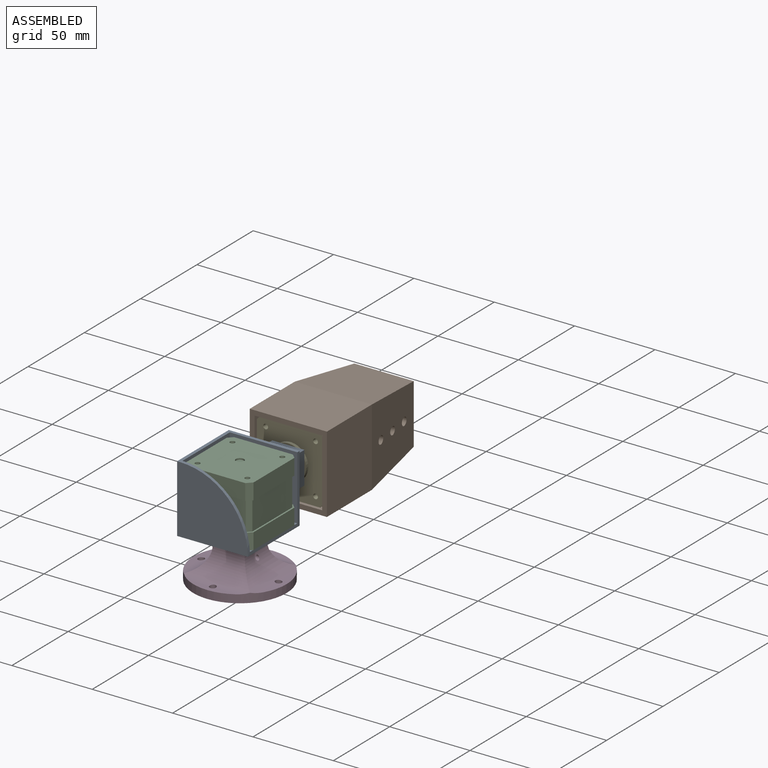
[diagram: assembled view]
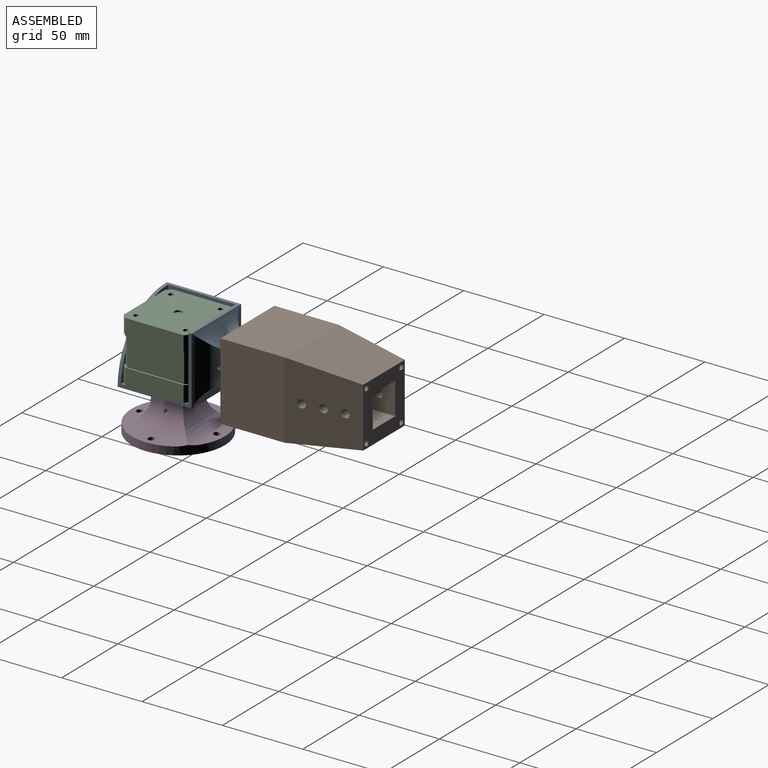
[diagram: assembled view, second angle]
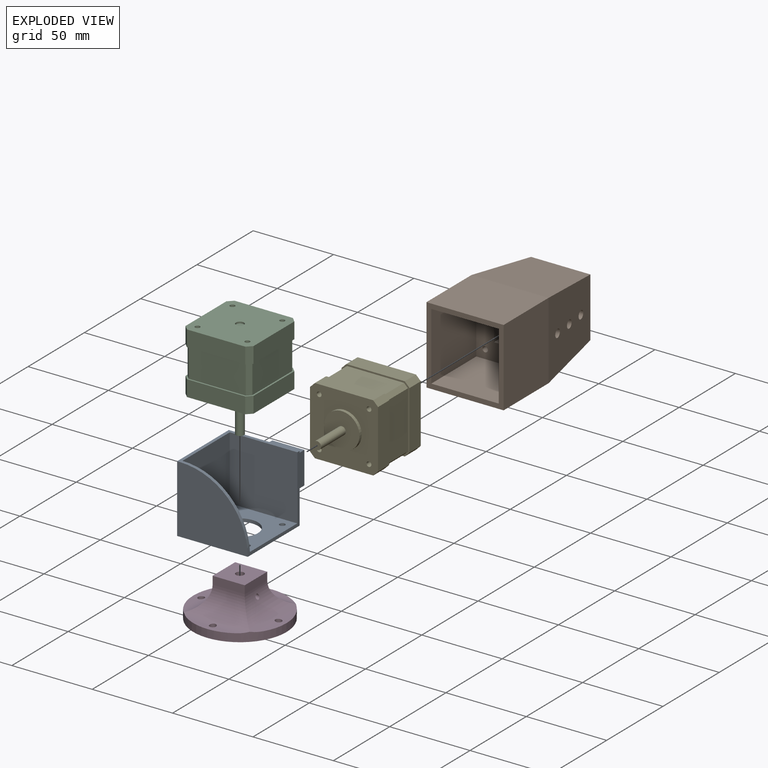
[diagram: exploded view]
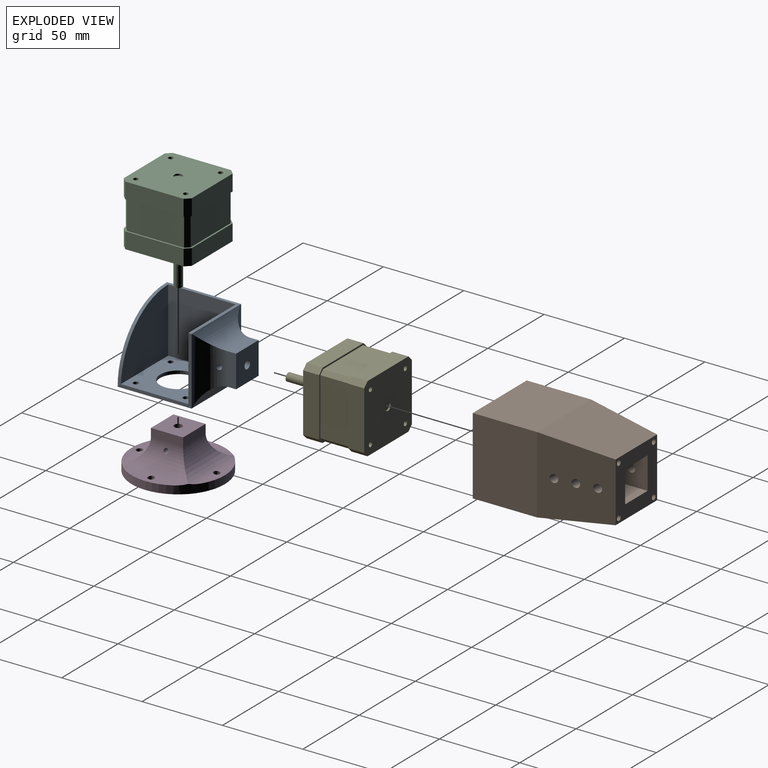
[diagram: exploded view, second angle]
ASSEMBLY  parts=5 mates=4
PART A: 28 faces, bbox 66x42x44 mm
  f0: cylinder r=2.5mm len=20mm, axis (1,0,0), area 299.3mm2, adj f13,f19,f21,f22
  f1: plane 42x41.95mm, normal (0,-1,0), area 1328.1mm2, adj f2,f8,f14,f15,f16,f17,f18,f20
  f2: plane 42x40mm, normal (0,0,1), area 1680mm2, adj f1,f4,f8,f14
  f3: plane 42x2mm, normal (0,0,1), area 84mm2, adj f4,f6,f8,f26
  f4: plane 46x44mm, normal (0,-1,0), area 176mm2, adj f2,f3,f5,f7,f8,f25,f27
  f5: plane 46x42mm, normal (0,0,-1), area 1932mm2, adj f4,f6,f7,f23
  f6: plane 46x44mm, normal (0,1,0), area 1590.1mm2, adj f3,f5,f7,f15,f16,f17,f18,f20
  f7: plane 44x42mm, normal (1,0,0), area 1469.4mm2, adj f4,f5,f6,f27
  f8: plane 42x42mm, normal (1,0,0), area 1680mm2, adj f1,f2,f3,f4,f27
  f9: plane 20x5.13mm, normal (0,0,-1), area 102.7mm2, adj f10,f12,f13,f23
  f10: plane 20x5.3mm, normal (0,1,0), area 106.1mm2, adj f9,f11,f13,f23,f24
  f11: plane 20x5.54mm, normal (0,0,1), area 110.9mm2, adj f10,f12,f13,f24,f26
  f12: plane 20.02x5.86mm, normal (0,-1,0), area 117.2mm2, adj f9,f11,f13,f23,f25,f26
  f13: plane 20x20mm, normal (-1,0,0), area 380.4mm2, adj f0,f9,f10,f11,f12
  f14: plane 41.95x40mm, normal (-1,0,0), area 1301.5mm2, adj f1,f2,f27
  f15: cylinder r=1.7mm len=3.4mm, axis (0,-1,0), area 21.4mm2, adj f1,f6
  f16: cylinder r=1.7mm len=3.4mm, axis (0,-1,0), area 21.4mm2, adj f1,f6
  f17: cylinder r=1.7mm len=3.4mm, axis (0,-1,0), area 21.4mm2, adj f1,f6
  f18: cylinder r=1.7mm len=3.4mm, axis (0,-1,0), area 21.4mm2, adj f1,f6
  f19: plane 5x5mm, normal (-1,0,0), area 19.6mm2, adj f0
  f20: cylinder r=11.25mm len=22.5mm, axis (0,-1,0), area 141.4mm2, adj f1,f6
  f21: cylinder r=1.5mm len=9.23mm, axis (0,0,-1), area 79.8mm2, adj f0,f26
  f22: cylinder r=1.5mm len=9.42mm, axis (0,0,-1), area 81mm2, adj f0,f23
  f23: cylinder r=15mm len=42mm, axis (0,-1,0), area 601.8mm2, adj f5,f9,f10,f12,f22,f24,f25
  f24: cylinder r=15mm len=44mm, axis (0,0,1), area 585mm2, adj f6,f10,f11,f23,f26
  f25: cylinder r=15mm len=44mm, axis (0,0,1), area 518.1mm2, adj f4,f12,f23,f26
  f26: cylinder r=15mm len=42mm, axis (0,-1,0), area 533.7mm2, adj f3,f11,f12,f21,f24,f25
  f27: cylinder r=42mm len=44mm, axis (1,0,0), area 216mm2, adj f1,f4,f6,f7,f8,f14
PART B: 29 faces, bbox 85.1x48.1x48.1 mm
  f0: plane 36.95x36.95mm, normal (-1,0,0), area 928.9mm2, adj f2,f3,f4,f5,f6,f7,f8,f9
  f1: plane 42x42mm, normal (1,0,0), area 1327.7mm2, adj f6,f7,f8,f9,f13,f14,f15,f16
  f2: plane 48x45mm, normal (-0.12,0,0.99), area 1925.7mm2, adj f0,f3,f5,f10
  f3: plane 48.13x45.13mm, normal (-0.12,-0.99,0), area 1866.4mm2, adj f0,f2,f4,f11,f23,f24,f25
  f4: plane 48x45mm, normal (-0.12,0,-0.99), area 1925.7mm2, adj f0,f3,f5,f12
  f5: plane 48.13x45.13mm, normal (-0.12,0.99,0), area 1866.4mm2, adj f0,f2,f4,f17,f26,f27,f28
  f6: plane 45x20mm, normal (0,0,1), area 900mm2, adj f0,f1,f7,f9
  f7: plane 45x20mm, normal (0,-1,0), area 841.1mm2, adj f0,f1,f6,f8,f26,f27,f28
  f8: plane 45x20mm, normal (0,0,-1), area 900mm2, adj f0,f1,f7,f9
  f9: plane 45x20mm, normal (0,1,0), area 841.1mm2, adj f0,f1,f6,f8,f23,f24,f25
  f10: plane 48x40mm, normal (0,0,1), area 1920mm2, adj f2,f11,f17,f18
  f11: plane 48x40mm, normal (0,-1,0), area 1920mm2, adj f3,f10,f12,f18
  f12: plane 48x40mm, normal (0,0,-1), area 1920mm2, adj f4,f11,f17,f18
  f13: plane 42x40mm, normal (0,-1,0), area 1680mm2, adj f1,f14,f16,f18
  f14: plane 42x40mm, normal (0,0,1), area 1680mm2, adj f1,f13,f15,f18
  f15: plane 42x40mm, normal (0,1,0), area 1680mm2, adj f1,f14,f16,f18
  f16: plane 42x40mm, normal (0,0,-1), area 1680mm2, adj f1,f13,f15,f18
  f17: plane 48x40mm, normal (0,1,0), area 1920mm2, adj f5,f10,f12,f18
  f18: plane 48x48mm, normal (1,0,0), area 540mm2, adj f10,f11,f12,f13,f14,f15,f16,f17
  f19: cylinder r=1.7mm len=45mm, axis (1,0,0), area 480.7mm2, adj f0,f1
  f20: cylinder r=1.7mm len=45mm, axis (1,0,0), area 480.7mm2, adj f0,f1
  f21: cylinder r=1.7mm len=45mm, axis (1,0,0), area 480.7mm2, adj f0,f1
  f22: cylinder r=1.7mm len=45mm, axis (1,0,0), area 480.7mm2, adj f0,f1
  f23: cylinder r=2.5mm len=10.04mm, axis (0,1,0), area 153mm2, adj f3,f9
  f24: cylinder r=2.5mm len=11.58mm, axis (0,1,0), area 177.2mm2, adj f3,f9
  f25: cylinder r=2.5mm len=13.12mm, axis (0,1,0), area 201.4mm2, adj f3,f9
  f26: cylinder r=2.5mm len=10.04mm, axis (0,-1,0), area 153mm2, adj f5,f7
  f27: cylinder r=2.5mm len=11.58mm, axis (0,-1,0), area 177.2mm2, adj f5,f7
  f28: cylinder r=2.5mm len=13.12mm, axis (0,-1,0), area 201.4mm2, adj f5,f7
PART C: 38 faces, bbox 42.3x62x42.3 mm
  f0: plane 42.3x42.3mm, normal (0,1,0), area 158.9mm2, adj f3,f4,f5,f6,f7,f8,f9,f10
  f1: plane 22x22mm, normal (0,-1,0), area 360.5mm2, adj f11,f12
  f2: plane 42.3x42.3mm, normal (0,-1,0), area 1362.9mm2, adj f3,f4,f5,f6,f7,f8,f9,f10
  f3: plane 10x3mm, normal (-0.71,0,0.71), area 42.4mm2, adj f0,f2,f4,f10
  f4: plane 36.3x10mm, normal (-1,0,0), area 363mm2, adj f0,f2,f3,f5
  f5: plane 10x3mm, normal (-0.71,0,-0.71), area 42.4mm2, adj f0,f2,f4,f6
  f6: plane 36.3x10mm, normal (0,0,-1), area 363mm2, adj f0,f2,f5,f7
  f7: plane 10x3mm, normal (0.71,0,-0.71), area 42.4mm2, adj f0,f2,f6,f8
  f8: plane 36.3x10mm, normal (1,0,0), area 363mm2, adj f0,f2,f7,f9
  f9: plane 10x3mm, normal (0.71,0,0.71), area 42.4mm2, adj f0,f2,f8,f10
  f10: plane 36.3x10mm, normal (0,0,1), area 363mm2, adj f0,f2,f3,f9
  f11: cylinder r=11mm len=22mm, axis (0,1,0), area 138.2mm2, adj f1,f2
  f12: cylinder r=2.5mm len=22mm, axis (0,1,0), area 345.6mm2, adj f1,f13
  f13: plane 5x5mm, normal (0,-1,0), area 19.6mm2, adj f12
  f14: plane 35.47x18mm, normal (0,0,1), area 638.5mm2, adj f0,f15,f21,f22
  f15: plane 18x2.41mm, normal (0.71,0,0.71), area 61.5mm2, adj f0,f14,f16,f22
  f16: plane 35.47x18mm, normal (1,0,0), area 638.5mm2, adj f0,f15,f17,f22
  f17: plane 18x2.41mm, normal (0.71,0,-0.71), area 61.5mm2, adj f0,f16,f18,f22
  f18: plane 35.47x18mm, normal (0,0,-1), area 638.5mm2, adj f0,f17,f19,f22
  f19: plane 18x2.41mm, normal (-0.71,0,-0.71), area 61.5mm2, adj f0,f18,f20,f22
  f20: plane 35.47x18mm, normal (-1,0,0), area 638.5mm2, adj f0,f19,f21,f22
  f21: plane 18x2.41mm, normal (-0.71,0,0.71), area 61.5mm2, adj f0,f14,f20,f22
  f22: plane 42.3x42.3mm, normal (0,-1,0), area 158.9mm2, adj f14,f15,f16,f17,f18,f19,f20,f21
  f23: plane 10x3mm, normal (-0.71,0,0.71), area 42.4mm2, adj f22,f24,f30,f31
  f24: plane 36.3x10mm, normal (0,0,1), area 363mm2, adj f22,f23,f25,f31
  f25: plane 10x3mm, normal (0.71,0,0.71), area 42.4mm2, adj f22,f24,f26,f31
  f26: plane 36.3x10mm, normal (1,0,0), area 363mm2, adj f22,f25,f27,f31
  f27: plane 10x3mm, normal (0.71,0,-0.71), area 42.4mm2, adj f22,f26,f28,f31
  f28: plane 36.3x10mm, normal (0,0,-1), area 363mm2, adj f22,f27,f29,f31
  f29: plane 10x3mm, normal (-0.71,0,-0.71), area 42.4mm2, adj f22,f28,f30,f31
  f30: plane 36.3x10mm, normal (-1,0,0), area 363mm2, adj f22,f23,f29,f31
  f31: plane 42.3x42.3mm, normal (0,1,0), area 1723.4mm2, adj f23,f24,f25,f26,f27,f28,f29,f30
  f32: cylinder r=1.5mm len=38mm, axis (0,-1,0), area 358.1mm2, adj f2,f31
  f33: cylinder r=1.5mm len=38mm, axis (0,-1,0), area 358.1mm2, adj f2,f31
  f34: cylinder r=1.5mm len=38mm, axis (0,-1,0), area 358.1mm2, adj f2,f31
  f35: cylinder r=1.5mm len=38mm, axis (0,-1,0), area 358.1mm2, adj f2,f31
  f36: cylinder r=2.5mm len=5mm, axis (0,1,0), area 15.7mm2, adj f31,f37
  f37: plane 5x5mm, normal (0,1,0), area 19.6mm2, adj f36
PART D: 23 faces, bbox 25x58x58 mm
  f0: cylinder r=15mm len=41.01mm, axis (0,0,-1), area 673.9mm2, adj f1,f3,f8,f9,f14,f22
  f1: cylinder r=15mm len=41.01mm, axis (0,-1,0), area 666.4mm2, adj f0,f2,f4,f9,f13,f17,f21
  f2: cylinder r=15mm len=41.01mm, axis (0,0,1), area 673.9mm2, adj f1,f3,f5,f9,f12,f20
  f3: cylinder r=15mm len=41.01mm, axis (0,1,0), area 666.4mm2, adj f0,f2,f6,f9,f11,f18,f19
  f4: plane 29.39x4mm, normal (-1,0,0), area 76.8mm2, adj f1,f9,f21
  f5: plane 29.39x4mm, normal (-1,0,0), area 76.8mm2, adj f2,f9,f20
  f6: plane 29.39x4mm, normal (-1,0,0), area 76.8mm2, adj f3,f9,f19
  f7: cylinder r=2.5mm len=20mm, axis (1,0,0), area 299.3mm2, adj f15,f16,f17,f18
  f8: plane 29.39x4mm, normal (-1,0,0), area 76.8mm2, adj f0,f9,f22
  f9: cylinder r=29mm len=58mm, axis (-1,0,0), area 923.4mm2, adj f0,f1,f2,f3,f4,f5,f6,f8
  f10: plane 58x58mm, normal (1,0,0), area 2591.8mm2, adj f9,f19,f20,f21,f22
  f11: plane 20x5mm, normal (0,0,-1), area 100mm2, adj f3,f12,f14,f15
  f12: plane 20x5mm, normal (0,1,0), area 100mm2, adj f2,f11,f13,f15
  f13: plane 20x5mm, normal (0,0,1), area 100mm2, adj f1,f12,f14,f15
  f14: plane 20x5mm, normal (0,-1,0), area 100mm2, adj f0,f11,f13,f15
  f15: plane 20x20mm, normal (-1,0,0), area 380.4mm2, adj f7,f11,f12,f13,f14
  f16: plane 5x5mm, normal (-1,0,0), area 19.6mm2, adj f7
  f17: cylinder r=1.5mm len=9.48mm, axis (0,0,-1), area 81.5mm2, adj f1,f7
  f18: cylinder r=1.5mm len=9.48mm, axis (0,0,-1), area 81.5mm2, adj f3,f7
  f19: cylinder r=2mm len=5.29mm, axis (1,0,0), area 63.9mm2, adj f3,f6,f10
  f20: cylinder r=2mm len=5.29mm, axis (1,0,0), area 63.9mm2, adj f2,f5,f10
  f21: cylinder r=2mm len=5.29mm, axis (1,0,0), area 63.9mm2, adj f1,f4,f10
  f22: cylinder r=2mm len=5.29mm, axis (1,0,0), area 63.9mm2, adj f0,f8,f10
PART E: same geometry as C
PLACE A rot(axis=(-0.58,0.58,-0.58),120deg) t=(15.86,-18.42,2.14)mm
PLACE B rot(axis=(0.71,-0.71,0),180deg) t=(15.86,41.58,2.14)mm
PLACE C rot(axis=(0.58,-0.58,-0.58),120deg) t=(17.48,-53.03,-7.86)mm
PLACE D rot(axis=(0,1,0),90deg) t=(15.86,-41.42,-41.86)mm
PLACE E t=(27.48,13.58,0.52)mm
MATE fastened E.f34 <-> B.f20  axis (0,1,0) through (31.36,41.58,-13.36)mm
MATE fastened C.f11 <-> A.f20  axis (0,0,-1) through (15.86,-41.42,-17.86)mm
MATE fastened D.f7 <-> C.f11  axis (0,0,-1) through (15.86,-41.42,-41.86)mm
MATE fastened A.f0 <-> E.f11  axis (0,1,0) through (15.86,1.58,2.14)mm
